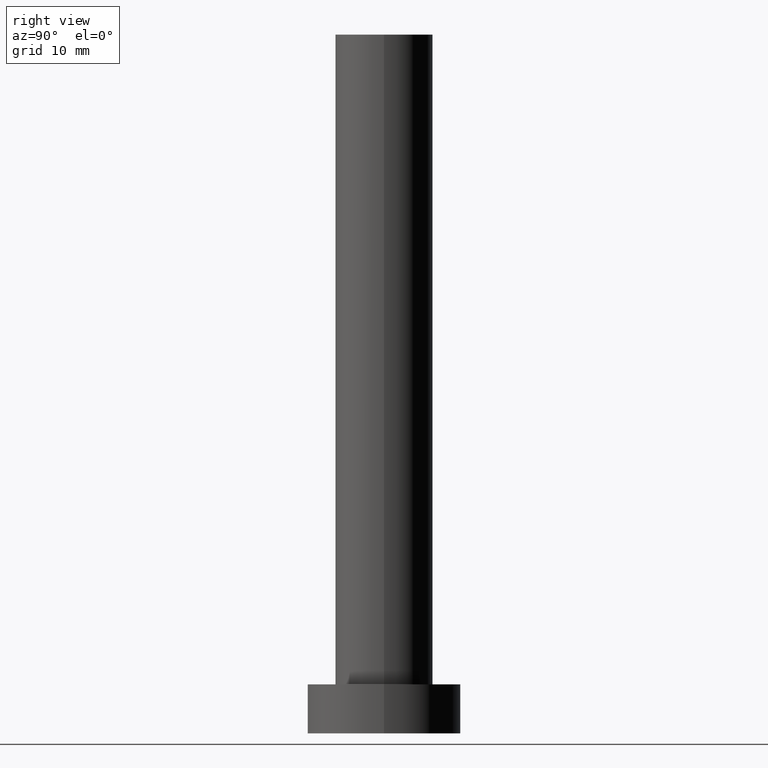
[diagram: clean part render]
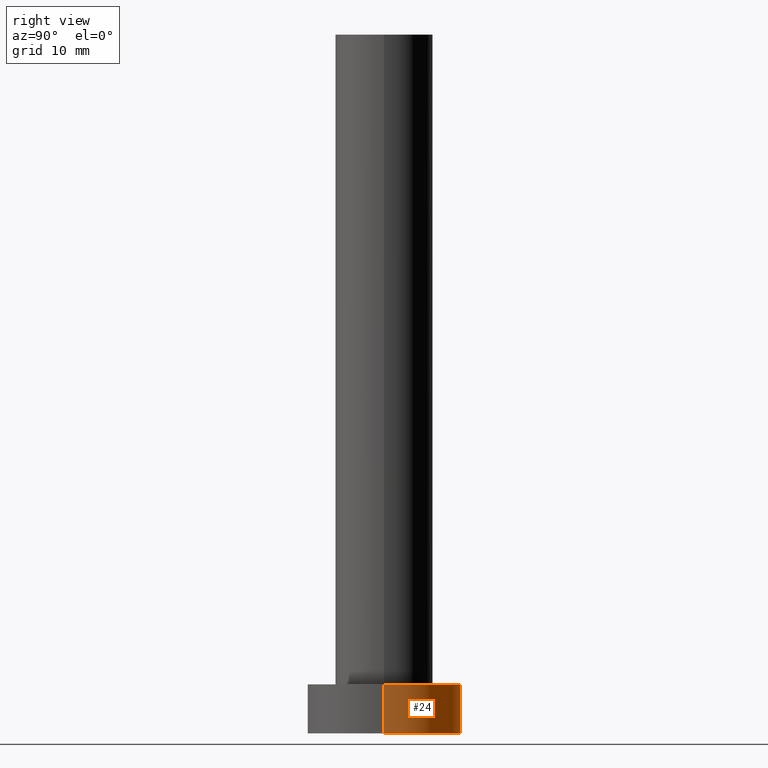
[diagram: same view with one face highlighted and labeled with its STEP entity id]
A machine part, right view. The second image highlights one B-rep face of the part: STEP entity #24.
In plain terms, the highlighted cylindrical surface (partial cylindrical patch) has radius 11 mm, axis along (-0, -0, -1).
Its self-contained STEP definition (entity closure, byte-faithful):
#1 = CARTESIAN_POINT ( 'NONE',  ( 11.00000000000000000, 1.347111479062088405E-15, 7.000000000000000000 ) ) ;
#13 = EDGE_CURVE ( 'NONE', #150, #135, #188, .T. ) ;
#17 = DIRECTION ( 'NONE',  ( -0.000000000000000000, -0.000000000000000000, -1.000000000000000000 ) ) ;
#21 = AXIS2_PLACEMENT_3D ( 'NONE', #189, #17, #171 ) ;
#22 = LINE ( 'NONE', #81, #226 ) ;
#24 = ADVANCED_FACE ( 'NONE', ( #133 ), #112, .T. ) ;
#29 = ORIENTED_EDGE ( 'NONE', *, *, #13, .F. ) ;
#51 = VERTEX_POINT ( 'NONE', #175 ) ;
#56 = AXIS2_PLACEMENT_3D ( 'NONE', #237, #240, #77 ) ;
#75 = EDGE_CURVE ( 'NONE', #150, #51, #22, .T. ) ;
#77 = DIRECTION ( 'NONE',  ( 1.000000000000000000, 0.000000000000000000, 0.000000000000000000 ) ) ;
#81 = CARTESIAN_POINT ( 'NONE',  ( 11.00000000000000000, 1.347111479062088405E-15, 7.000000000000000000 ) ) ;
#85 = AXIS2_PLACEMENT_3D ( 'NONE', #169, #254, #255 ) ;
#86 = ORIENTED_EDGE ( 'NONE', *, *, #217, .T. ) ;
#112 = CYLINDRICAL_SURFACE ( 'NONE', #21, 11.00000000000000000 ) ;
#133 = FACE_OUTER_BOUND ( 'NONE', #170, .T. ) ;
#134 = LINE ( 'NONE', #192, #219 ) ;
#135 = VERTEX_POINT ( 'NONE', #138 ) ;
#138 = CARTESIAN_POINT ( 'NONE',  ( -11.00000000000000000, 0.000000000000000000, 7.000000000000000000 ) ) ;
#139 = EDGE_CURVE ( 'NONE', #135, #209, #134, .T. ) ;
#141 = CARTESIAN_POINT ( 'NONE',  ( -11.00000000000000000, 0.000000000000000000, 0.000000000000000000 ) ) ;
#150 = VERTEX_POINT ( 'NONE', #1 ) ;
#166 = DIRECTION ( 'NONE',  ( -0.000000000000000000, -0.000000000000000000, -1.000000000000000000 ) ) ;
#169 = CARTESIAN_POINT ( 'NONE',  ( 0.000000000000000000, 0.000000000000000000, 7.000000000000000000 ) ) ;
#170 = EDGE_LOOP ( 'NONE', ( #29, #224, #86, #201 ) ) ;
#171 = DIRECTION ( 'NONE',  ( -1.000000000000000000, 0.000000000000000000, 0.000000000000000000 ) ) ;
#175 = CARTESIAN_POINT ( 'NONE',  ( 11.00000000000000000, 1.347111479062088405E-15, 0.000000000000000000 ) ) ;
#186 = DIRECTION ( 'NONE',  ( -0.000000000000000000, -0.000000000000000000, -1.000000000000000000 ) ) ;
#188 = CIRCLE ( 'NONE', #85, 11.00000000000000000 ) ;
#189 = CARTESIAN_POINT ( 'NONE',  ( 0.000000000000000000, 0.000000000000000000, 7.000000000000000000 ) ) ;
#192 = CARTESIAN_POINT ( 'NONE',  ( -11.00000000000000000, 0.000000000000000000, 7.000000000000000000 ) ) ;
#201 = ORIENTED_EDGE ( 'NONE', *, *, #139, .F. ) ;
#209 = VERTEX_POINT ( 'NONE', #141 ) ;
#217 = EDGE_CURVE ( 'NONE', #51, #209, #247, .T. ) ;
#219 = VECTOR ( 'NONE', #186, 1000.000000000000000 ) ;
#224 = ORIENTED_EDGE ( 'NONE', *, *, #75, .T. ) ;
#226 = VECTOR ( 'NONE', #166, 1000.000000000000000 ) ;
#237 = CARTESIAN_POINT ( 'NONE',  ( 0.000000000000000000, 0.000000000000000000, 0.000000000000000000 ) ) ;
#240 = DIRECTION ( 'NONE',  ( 0.000000000000000000, 0.000000000000000000, 1.000000000000000000 ) ) ;
#247 = CIRCLE ( 'NONE', #56, 11.00000000000000000 ) ;
#254 = DIRECTION ( 'NONE',  ( 0.000000000000000000, 0.000000000000000000, 1.000000000000000000 ) ) ;
#255 = DIRECTION ( 'NONE',  ( 1.000000000000000000, 0.000000000000000000, 0.000000000000000000 ) ) ;